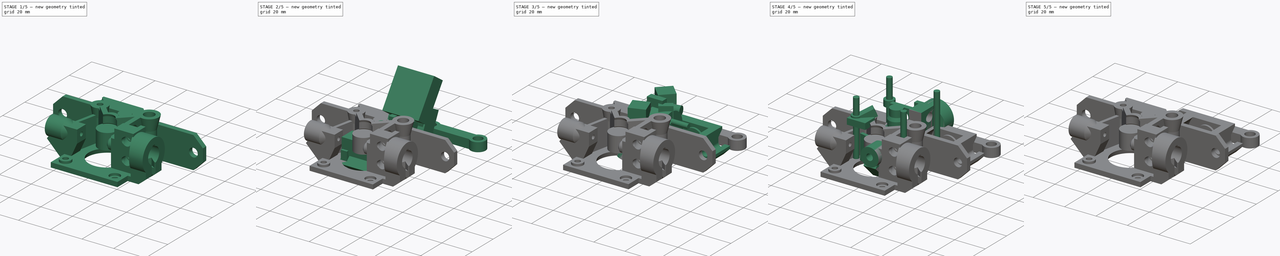
[diagram: build sequence overview — one tinted view per stage of 5, left to right]
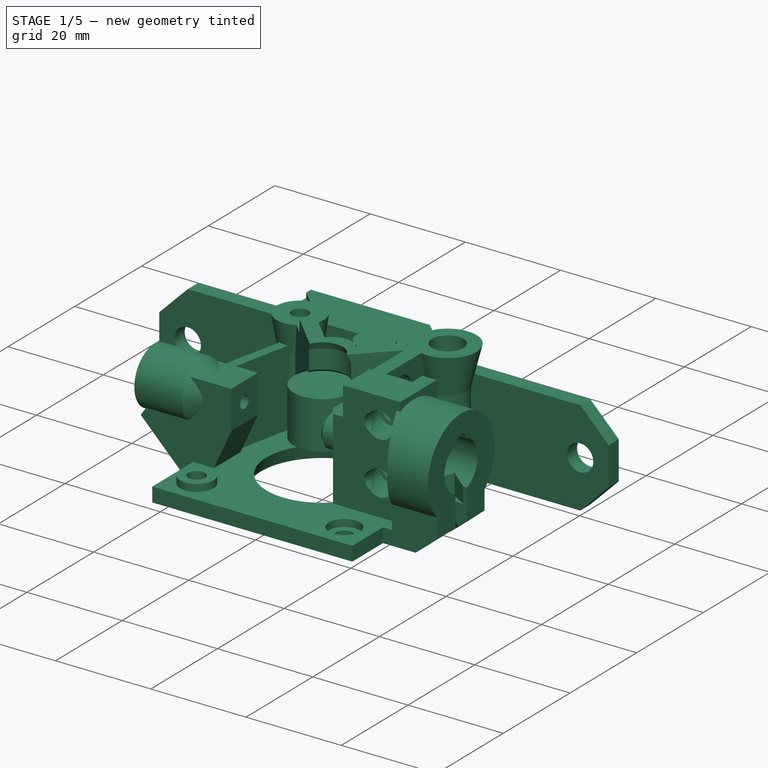
[diagram: stage 1 of 5 — iso view after this stage's code; geometry added in this stage tinted green]
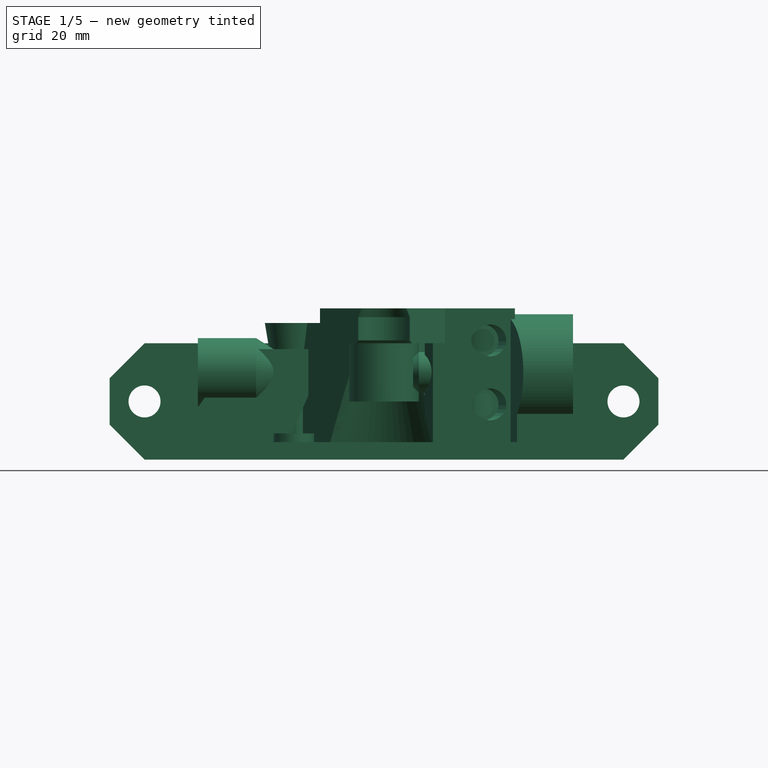
[diagram: stage 1 of 5 — front view after this stage's code; geometry added in this stage tinted green]
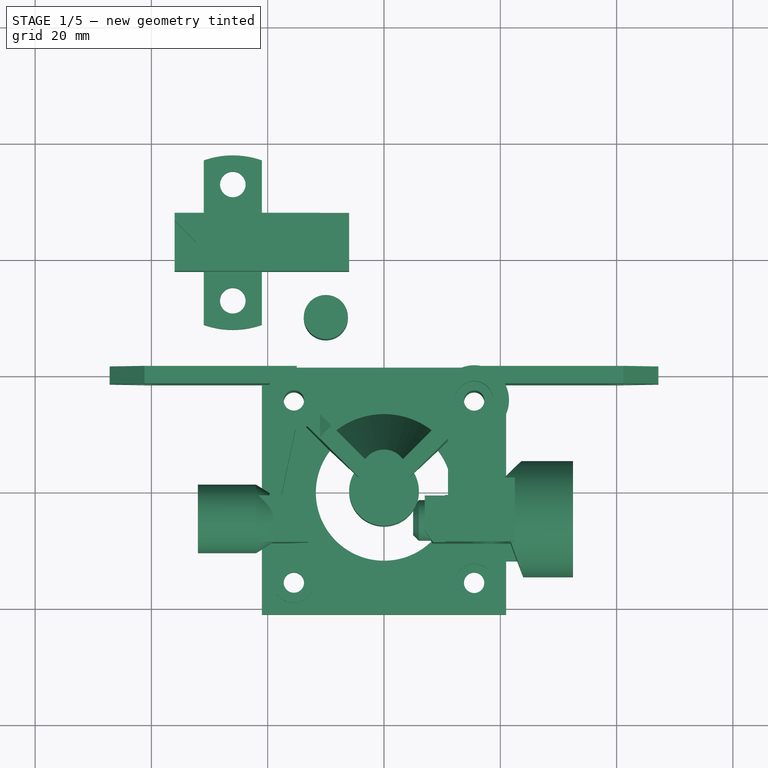
[diagram: stage 1 of 5 — top view after this stage's code; geometry added in this stage tinted green]
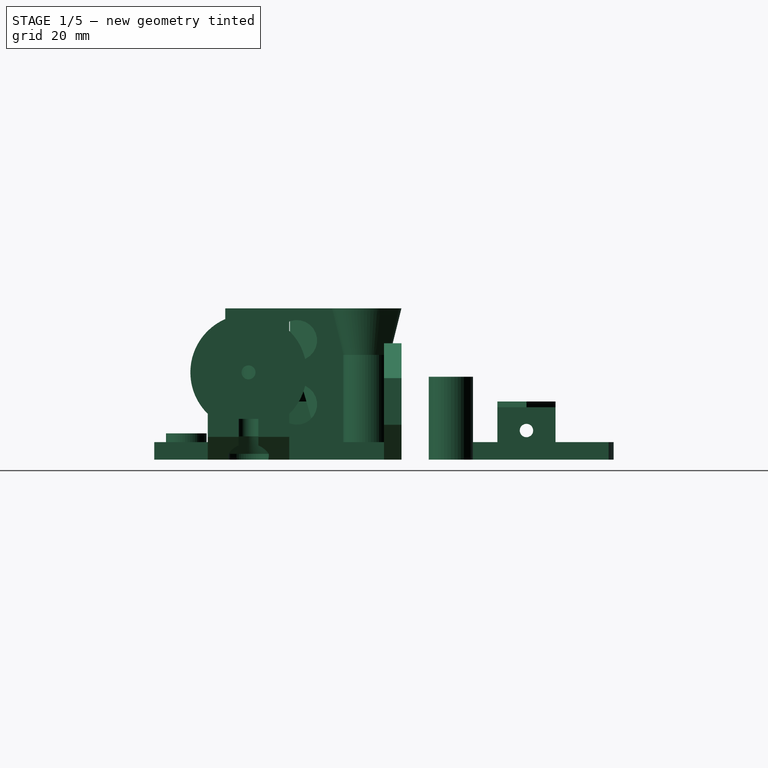
[diagram: stage 1 of 5 — right view after this stage's code; geometry added in this stage tinted green]
FCSTD DOCUMENT  (FreeCAD 0.14R2935 (Git))
Label: airstripper
License: CC-BY 3.0
LicenseURL: http://creativecommons.org/licenses/by/3.0/
objects: Part::Box×48, Part::Prism×48, Part::Cut×17, Part::MultiFuse×17, Part::Cone×12, Part::Cylinder×8, Part::Fuse×7, Part::Feature×4, Sketcher::SketchObject×3, PartDesign::Pocket×2, PartDesign::Chamfer×2, PartDesign::Pad×1
note: 172 computed .brp shape members not serialized (recipe doc carries the construction recipe); baked Part::Feature solids carry a one-line shape summary decoded from their .brp

FEATURE [Part::Prism] prism040
  Circumradius = 3.8
  Height = 14.25
  Placement = pos=(-10,10,0) rot=(0,0,1;0rad)
  Polygon = 40
FEATURE [Part::Box] cube042
  Height = 10
  Length = 30
  Placement = pos=(0,10,0) rot=(0,0,1;0rad)
  Width = 10
FEATURE [Part::Box] cube043
  Height = 3
  Length = 10
  Placement = pos=(5,0,0) rot=(0,0,1;0rad)
  Width = 30
FEATURE [Part::Prism] prism041
  Circumradius = 20
  Height = 5
  Placement = pos=(10,15,-1) rot=(0,0,1;0rad)
  Polygon = 100
FEATURE [Part::Prism] prism042
  Circumradius = 15
  Height = 5
  Placement = pos=(10,15,-1) rot=(0,0,1;0rad)
  Polygon = 100
FEATURE [Part::Cut] difference012
  Base = -> prism041
  Tool = -> prism042
FEATURE [Part::Cut] difference013
  Base = -> cube043
  Tool = -> difference012
FEATURE [Part::Fuse] union017
  Base = -> cube042
  Tool = -> difference013
FEATURE [Part::Prism] prism043
  Circumradius = 1.15
  Height = 32
  Placement = pos=(-1,15,5) rot=(0,1,0;1.5708rad)
  Polygon = 60
FEATURE [Part::Prism] prism044
  Circumradius = 2.14
  Height = 11
  Placement = pos=(-0.95,15,5) rot=(0,1,0;1.5708rad)
  Polygon = 60
FEATURE [Part::Prism] prism045
  Circumradius = 2.11
  Height = 11
  Placement = pos=(20,15,5) rot=(0,1,0;1.5708rad)
  Polygon = 60
FEATURE [Part::Cone] cylinder016
  Angle = 360
  Height = 5
  Placement = pos=(10,15,5) rot=(0,1,0;1.5708rad)
  Radius1 = 2.2
  Radius2 = 1.3
FEATURE [Part::Prism] prism046
  Circumradius = 2.2
  Height = 5
  Placement = pos=(10,25,-1) rot=(0,0,1;0rad)
  Polygon = 60
FEATURE [Part::Prism] prism047
  Circumradius = 2.2
  Height = 5
  Placement = pos=(10,5,-1) rot=(0,0,1;0rad)
  Polygon = 60
FEATURE [Part::Box] cube044
  Height = 5
  Length = 15
  Placement = pos=(-7,4.4,9) rot=(0,0,1;0.785398rad)
  Width = 15
FEATURE [Part::Box] cube045
  Height = 7
  Length = 25
  Placement = pos=(10,4.4,9) rot=(0,0,1;0rad)
  Width = 25
FEATURE [Part::Box] cube046
  Height = 5
  Length = 15
  Placement = pos=(19.4,4.4,9) rot=(0,0,1;0.785398rad)
  Width = 15
FEATURE [Part::Box] cube047
  Height = 7
  Length = 25
  Placement = pos=(0,4.4,9) rot=(0,0,1;0rad)
  Width = 25
FEATURE [Part::Fuse] union018
  Base = -> cube046
  Tool = -> cube047
FEATURE [Part::Cut] difference014
  Base = -> cube045
  Tool = -> union018
FEATURE [Part::MultiFuse] union019
  Shapes = -> [prism043,prism044,prism045,cylinder016,prism046,prism047,cube044,difference014]
FEATURE [Part::Cut] difference015
  Base = -> union017
  Placement = pos=(-36,8,0) rot=(0,0,1;0rad)
  Tool = -> union019
FEATURE [Part::Feature] Group001001  label="Group003"
  Placement = pos=(0,-20,0) rot=(0,0,-1;1.5708rad)
  shape: bbox 74 x 42.5 x 26 mm, 1647 faces (baked)
FEATURE [Part::Feature] Group001001001  label="Group004"
  shape: bbox 74 x 42.5 x 26 mm, 1647 faces (baked)
FEATURE [Sketcher::SketchObject] Sketch
  ExternalGeometry = -> [Group001001001]
  Placement = pos=(25.5,0,0) rot=(0.57735,0.57735,0.57735;2.0944rad)
  Support = -> Group001001001 [Face1198]
  sketch-geometry (2):
    g0: Circle [constr] CenterX=-24.8 CenterY=15 CenterZ=0 NormalX=0 NormalY=0 NormalZ=1 Radius=1.15
    g1: Circle CenterX=-24.8 CenterY=15 CenterZ=0 NormalX=0 NormalY=0 NormalZ=1 Radius=2.2
  constraints (5):
    c: PointOnObject(g-5,g0)
    c: PointOnObject(g-3,g0)
    c: PointOnObject(g-4,g0)
    c: Coincident(g1,g0)
    c: Radius(g1) = 2.2
FEATURE [PartDesign::Pocket] Pocket  label="Boquilla-teflon"
  Length = 5
  Sketch = -> Sketch
  Type = 0
FEATURE [Part::Feature] Pad  label="NEMA018"
  Placement = pos=(-21,-41,0) rot=(-1,0,0;1.5708rad)
  shape: bbox 42.3 x 42.3 x 65 mm, 22 faces (baked)
FEATURE [Part::Cylinder] Cylinder
  Angle = 360
  Height = 5
  Placement = pos=(5,-25,15) rot=(0,1,0;1.5708rad)
  Radius = 3.5
FEATURE [Part::Cylinder] Cylinder001
  Angle = 360
  Height = 10
  Placement = pos=(0,-20,10) rot=(0,0,1;0rad)
  Radius = 6
FEATURE [Part::MultiFuse] Fusion
  Shapes = -> [Pocket,Cylinder]
FEATURE [Part::Cylinder] Cylinder002
  Angle = 360
  Height = 137
  Placement = pos=(-56,-24.8,15) rot=(0,1,0;1.5708rad)
  Radius = 1.2
FEATURE [Part::Cut] Cut
  Base = -> Fusion
  Tool = -> Cylinder002
FEATURE [PartDesign::Chamfer] Chamfer
  Base = -> Cut [Edge1801,Edge3028]
  Size = 1
FEATURE [Sketcher::SketchObject] Sketch001
  ExternalGeometry = -> [Chamfer]
  Placement = pos=(0,1.5,0) rot=(0,0.707107,0.707107;3.14159rad)
  Support = -> Chamfer [Face658]
  sketch-geometry (14):
    g0: LineSegment StartX=-32.0503 StartY=20 StartZ=0 EndX=-47.1837 EndY=20 EndZ=0
    g1: LineSegment StartX=-47.1837 StartY=20 StartZ=0 EndX=-47.1837 EndY=0 EndZ=0
    g2: LineSegment StartX=-47.1837 StartY=0 StartZ=0 EndX=-32.0503 EndY=0 EndZ=0
    g3: LineSegment StartX=-32.0503 StartY=0 StartZ=0 EndX=-37 EndY=4.94975 EndZ=0
    g4: LineSegment StartX=-37 StartY=4.94975 StartZ=0 EndX=-37 EndY=15.0503 EndZ=0
    g5: LineSegment StartX=-37 StartY=15.0503 StartZ=0 EndX=-32.0503 EndY=20 EndZ=0
    g6: LineSegment StartX=32.0503 StartY=20 StartZ=0 EndX=47.1837 EndY=20 EndZ=0
    g7: LineSegment StartX=47.1837 StartY=20 StartZ=0 EndX=47.1837 EndY=0 EndZ=0
    g8: LineSegment StartX=47.1837 StartY=0 StartZ=0 EndX=32.0503 EndY=0 EndZ=0
    g9: LineSegment StartX=32.0503 StartY=0 StartZ=0 EndX=37 EndY=4.94975 EndZ=0
    g10: LineSegment StartX=37 StartY=4.94975 StartZ=0 EndX=37 EndY=15.0503 EndZ=0
    g11: LineSegment StartX=37 StartY=15.0503 StartZ=0 EndX=32.0503 EndY=20 EndZ=0
    g12: Circle CenterX=-30.5 CenterY=10 CenterZ=0 NormalX=0 NormalY=0 NormalZ=1 Radius=3.5
    g13: Circle CenterX=30.5 CenterY=10 CenterZ=0 NormalX=0 NormalY=0 NormalZ=1 Radius=3.5
  constraints (34):
    c: Coincident(g-3,g0)
    c: Horizontal(g0)
    c: Coincident(g0,g1)
    c: Vertical(g1)
    c: Coincident(g1,g2)
    c: Coincident(g2,g-5)
    c: Horizontal(g2)
    c: Coincident(g2,g3)
    c: Coincident(g3,g-5)
    c: Coincident(g3,g4)
    c: Coincident(g4,g-4)
    c: Coincident(g4,g5)
    c: Coincident(g5,g0)
    c: Coincident(g-6,g6)
    c: Horizontal(g6)
    c: Coincident(g6,g7)
    c: Vertical(g7)
    c: Coincident(g7,g8)
    c: Coincident(g8,g-8)
    c: Horizontal(g8)
    c: Coincident(g8,g9)
    c: Coincident(g9,g-8)
    c: Coincident(g9,g10)
    c: Coincident(g10,g-7)
    c: Coincident(g10,g11)
    c: Coincident(g11,g6)
    c: PointOnObject(g-13,g12)
    c: PointOnObject(g-12,g12)
    c: PointOnObject(g-14,g12)
    c: PointOnObject(g-10,g13)
    c: PointOnObject(g-9,g13)
    c: PointOnObject(g-11,g13)
    c: Equal(g6,g0)
    c: Distance(g0) = 15.1334
FEATURE [PartDesign::Pad] Pad001
  Length = 3
  Length2 = 100
  Reversed = true
  Sketch = -> Sketch001
  Type = 0
FEATURE [PartDesign::Chamfer] Chamfer001
  Base = -> Pad001 [Edge3522,Edge3524,Edge2,Edge1]
  Size = 6
FEATURE [Sketcher::SketchObject] Sketch002
  ExternalGeometry = -> [Chamfer001]
  Placement = pos=(0,1.5,0) rot=(0,0.707107,0.707107;3.14159rad)
  Support = -> Chamfer001 [Face2]
  sketch-geometry (5):
    g0: LineSegment [constr] StartX=-41.1837 StartY=20 StartZ=0 EndX=-41.1837 EndY=0 EndZ=0
    g1: LineSegment [constr] StartX=41.1837 StartY=20 StartZ=0 EndX=41.1837 EndY=0 EndZ=0
    g2: Circle CenterX=-41.1837 CenterY=10 CenterZ=0 NormalX=0 NormalY=0 NormalZ=1 Radius=2.75
    g3: Circle CenterX=41.1837 CenterY=10 CenterZ=0 NormalX=0 NormalY=0 NormalZ=1 Radius=2.75
    g4: LineSegment [constr] StartX=-41.1837 StartY=10 StartZ=0 EndX=41.1837 EndY=10 EndZ=0
  constraints (13):
    c: Coincident(g0,g-4)
    c: PointOnObject(g0,g-3)
    c: Vertical(g0)
    c: Coincident(g1,g-5)
    c: Coincident(g1,g-6)
    c: PointOnObject(g2,g0)
    c: PointOnObject(g3,g1)
    c: Coincident(g4,g2)
    c: Horizontal(g4)
    c: Coincident(g3,g4)
    c: Equal(g3,g2)
    c: Distance(g3,g1) = 10
    c: Radius(g3) = 2.75
FEATURE [PartDesign::Pocket] Pocket001
  Length = 5
  Sketch = -> Sketch002
  Type = 0
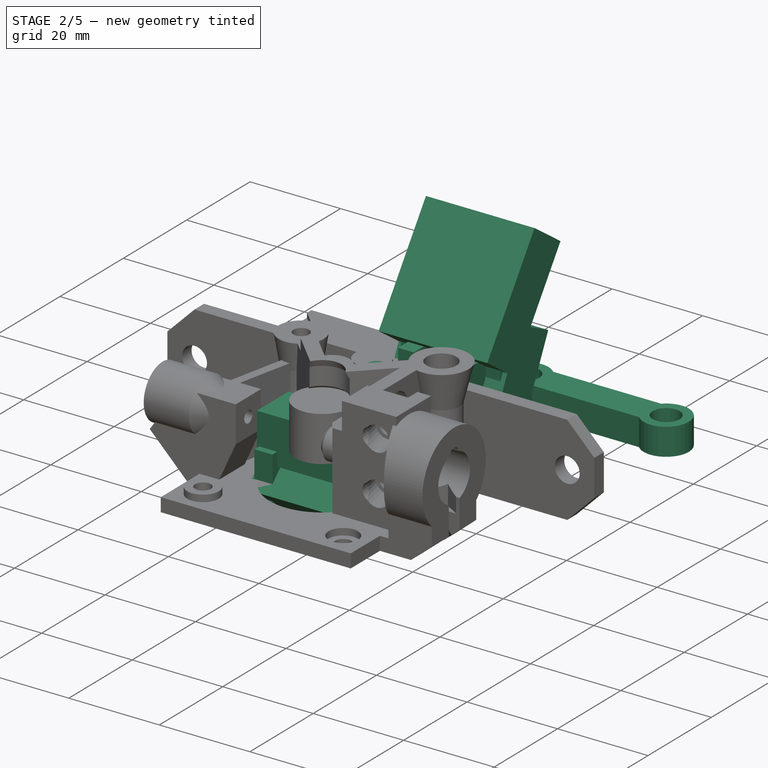
[diagram: stage 2 of 5 — iso view after this stage's code; geometry added in this stage tinted green]
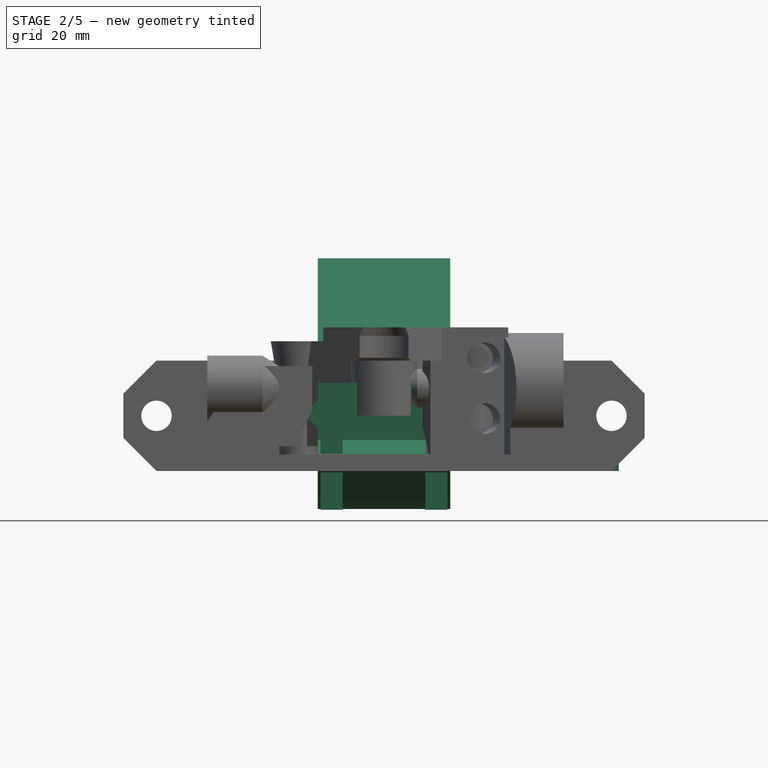
[diagram: stage 2 of 5 — front view after this stage's code; geometry added in this stage tinted green]
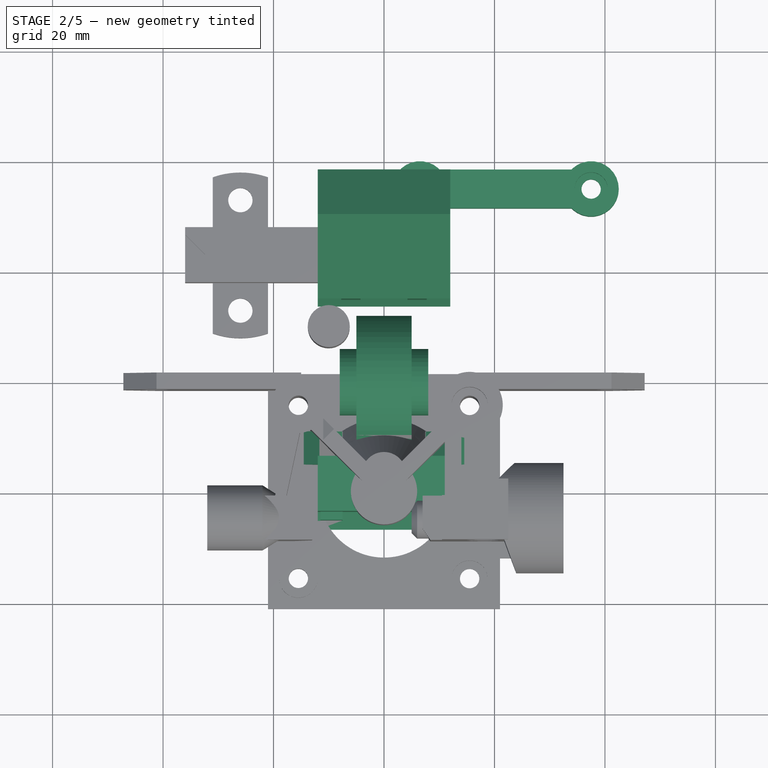
[diagram: stage 2 of 5 — top view after this stage's code; geometry added in this stage tinted green]
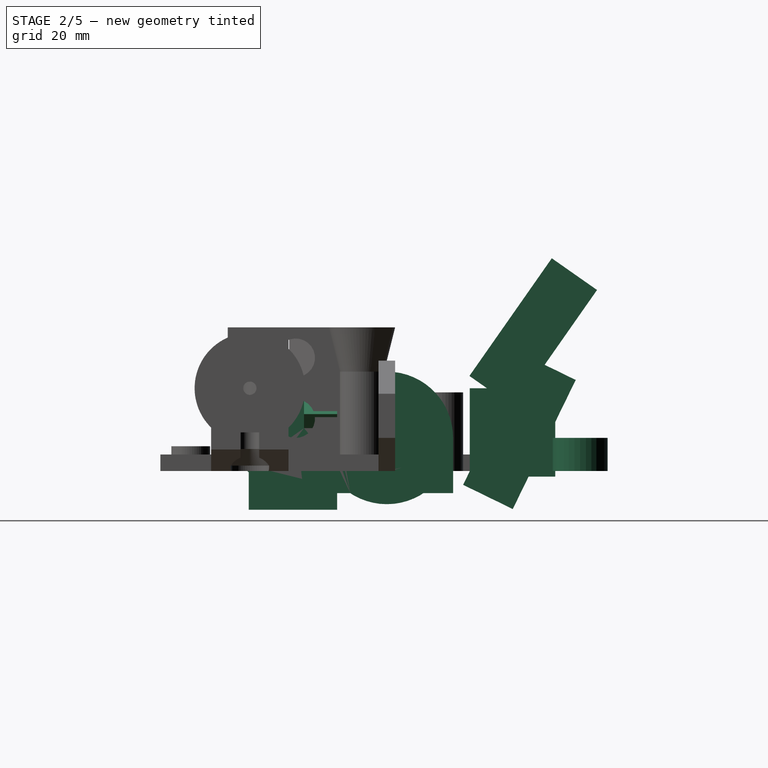
[diagram: stage 2 of 5 — right view after this stage's code; geometry added in this stage tinted green]
FEATURE [Part::Box] cube025
  Height = 10
  Length = 10
  Placement = pos=(-5,-12,-4) rot=(0,0,1;0rad)
  Width = 24
FEATURE [Part::Prism] prism029
  Circumradius = 12
  Height = 10
  Placement = pos=(-5,0,6) rot=(0,1,0;1.5708rad)
  Polygon = 60
FEATURE [Part::Fuse] union012
  Base = -> cube025
  Tool = -> prism029
FEATURE [Part::Prism] prism030
  Circumradius = 6
  Height = 16
  Placement = pos=(-8,0,6) rot=(0,1,0;1.5708rad)
  Polygon = 40
FEATURE [Part::Box] cube026
  Height = 6
  Length = 16
  Placement = pos=(-8,-6,0) rot=(0,0,1;0rad)
  Width = 12
FEATURE [Part::Prism] prism031
  Circumradius = 4.25
  Height = 15.5
  Placement = pos=(-7.75,0,6) rot=(0,1,0;1.5708rad)
  Polygon = 40
FEATURE [Part::Box] cube027
  Height = 8
  Length = 14.2
  Placement = pos=(-7.1,-4.25,-2) rot=(0,0,1;0rad)
  Width = 8.5
FEATURE [Part::Box] cube028
  Height = 8
  Length = 6
  Placement = pos=(-8.68716,-4.25,-2.73271) rot=(0,1,0;0.349066rad)
  Width = 8.5
FEATURE [Part::Box] cube029
  Height = 8
  Length = 6
  Placement = pos=(3.049,-4.25,-4.78483) rot=(0,-1,0;0.349066rad)
  Width = 8.5
FEATURE [Part::Prism] prism032
  Circumradius = 12
  Height = 7.4
  Placement = pos=(-3.7,0,6) rot=(0,1,0;1.5708rad)
  Polygon = 60
FEATURE [Part::Prism] prism033
  Circumradius = 2
  Height = 24
  Placement = pos=(-12,-15.5,6) rot=(0,1,0;1.5708rad)
  Polygon = 25
FEATURE [Part::Box] cube030
  Height = 10
  Length = 24
  Placement = pos=(-12,-23.5,6) rot=(0,0,1;0rad)
  Width = 10
FEATURE [Part::Box] cube031
  Height = 16
  Length = 4
  Placement = pos=(7.5,-25,-7) rot=(0,0,1;0rad)
  Width = 16
FEATURE [Part::Box] cube032
  Height = 16
  Length = 4
  Placement = pos=(-11.5,-25,-7) rot=(0,0,1;0rad)
  Width = 16
FEATURE [Part::Box] cube033
  Height = 10
  Length = 24
  Placement = pos=(-12,-19.5858,-5.65686) rot=(1,0,0;0.785398rad)
  Width = 6
FEATURE [Part::Box] cube034
  Height = 6
  Length = 4
  Placement = pos=(-11.7071,-15,13.1355) rot=(0,1,0;2.35619rad)
  Width = 6
FEATURE [Part::Box] cube035
  Height = 6
  Length = 4
  Placement = pos=(7.46447,-15,8.89289) rot=(0,1,0;0.785398rad)
  Width = 6
FEATURE [Part::Box] cube036
  Height = 16
  Length = 3.5
  Placement = pos=(4.25,15,-1) rot=(0,0,1;0rad)
  Width = 10
FEATURE [Part::Box] cube037
  Height = 16
  Length = 3.5
  Placement = pos=(-7.75,15,-1) rot=(0,0,1;0rad)
  Width = 10
FEATURE [Part::Box] cube038
  Height = 26
  Length = 24
  Placement = pos=(-12,34.1928,16.4925) rot=(1,0,0;2.68781rad)
  Width = 10
FEATURE [Part::Box] cube039
  Height = 26
  Length = 24
  Placement = pos=(-12,38.0522,32.7811) rot=(1,0,0;2.53073rad)
  Width = 10
FEATURE [Part::Box] cube040
  Height = 16
  Length = 22
  Placement = pos=(-11,20.5,-1) rot=(0,0,1;0rad)
  Width = 10
FEATURE [Part::MultiFuse] union014
  Shapes = -> [prism031,cube027,cube028,cube029,prism032,prism033,cube030,cube031,cube032,cube033,cube034,cube035,cube036,cube037,cube038,cube039,cube040]
FEATURE [Part::Prism] prism034
  Circumradius = 5
  Height = 6
  Placement = pos=(-15.5,0,0) rot=(0,0,1;0rad)
  Polygon = 30
FEATURE [Part::Prism] prism035
  Circumradius = 5
  Height = 6
  Placement = pos=(15.5,0,0) rot=(0,0,1;0rad)
  Polygon = 30
FEATURE [Part::Box] cube041
  Height = 6
  Length = 31
  Placement = pos=(-15.5,-3.5,0) rot=(0,0,1;0rad)
  Width = 7
FEATURE [Part::MultiFuse] union015
  Shapes = -> [prism034,prism035,cube041]
FEATURE [Part::Prism] prism036
  Circumradius = 1.75
  Height = 5
  Placement = pos=(-15.5,0,-1) rot=(0,0,1;0rad)
  Polygon = 30
FEATURE [Part::Prism] prism037
  Circumradius = 1.75
  Height = 5
  Placement = pos=(15.5,0,-1) rot=(0,0,1;0rad)
  Polygon = 30
FEATURE [Part::Prism] prism038
  Circumradius = 3
  Height = 5
  Placement = pos=(-15.5,0,3) rot=(0,0,1;0rad)
  Polygon = 30
FEATURE [Part::Prism] prism039
  Circumradius = 3
  Height = 5
  Placement = pos=(15.5,0,3) rot=(0,0,1;0rad)
  Polygon = 30
FEATURE [Part::MultiFuse] union016
  Shapes = -> [prism036,prism037,prism038,prism039]
FEATURE [Part::Cut] difference011
  Base = -> union015
  Placement = pos=(22,35,0) rot=(0,0,1;0rad)
  Tool = -> union016
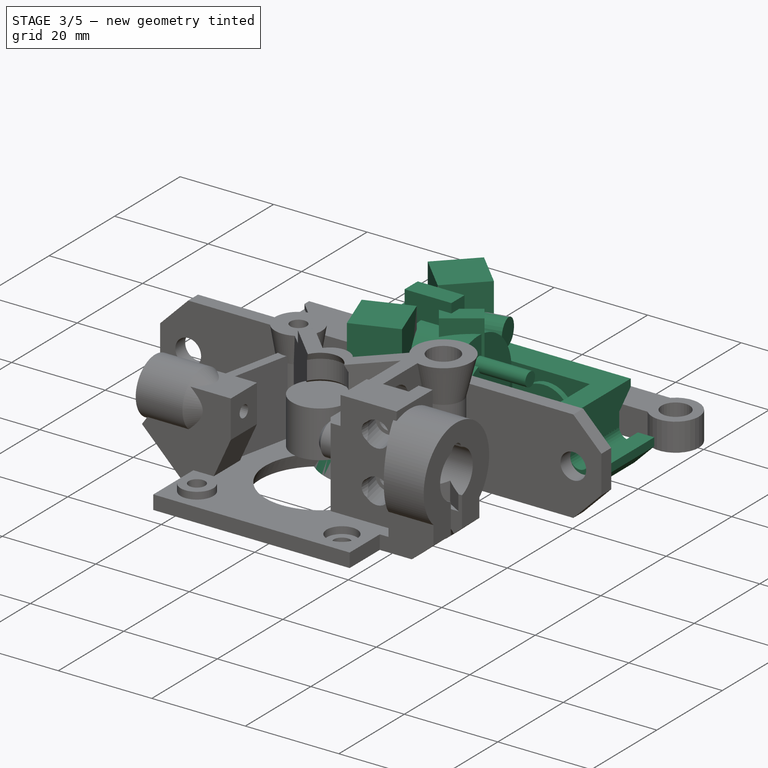
[diagram: stage 3 of 5 — iso view after this stage's code; geometry added in this stage tinted green]
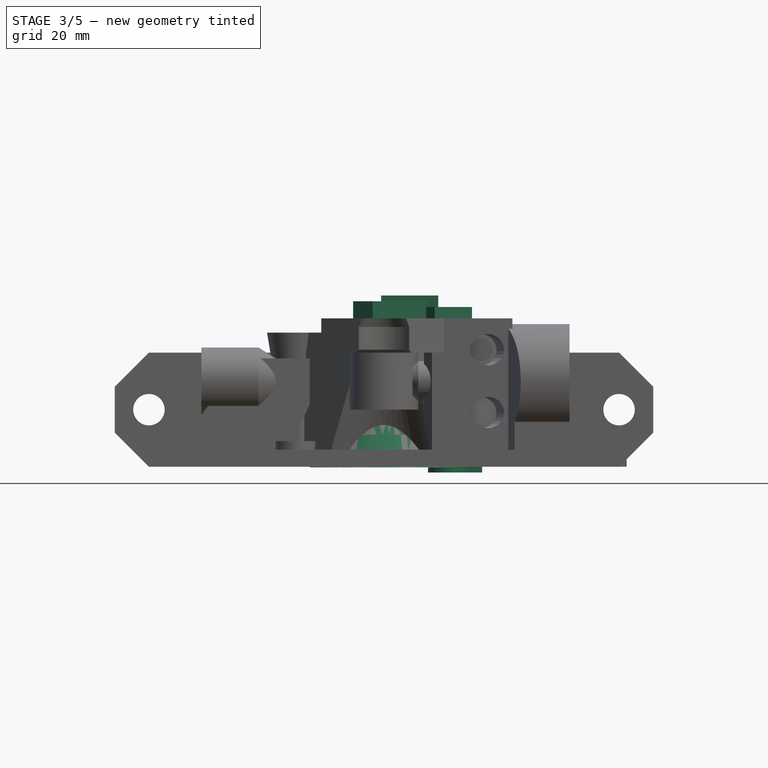
[diagram: stage 3 of 5 — front view after this stage's code; geometry added in this stage tinted green]
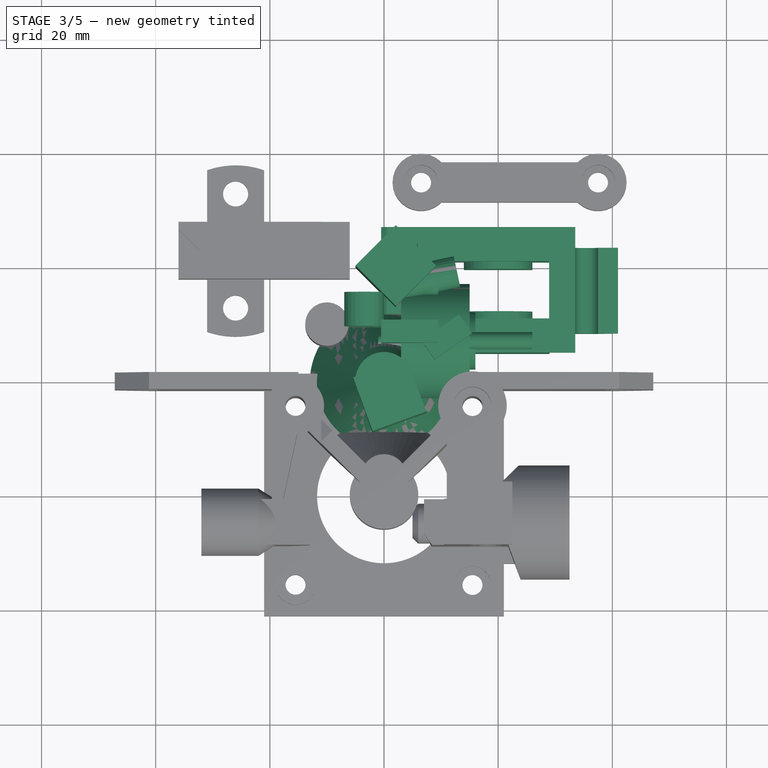
[diagram: stage 3 of 5 — top view after this stage's code; geometry added in this stage tinted green]
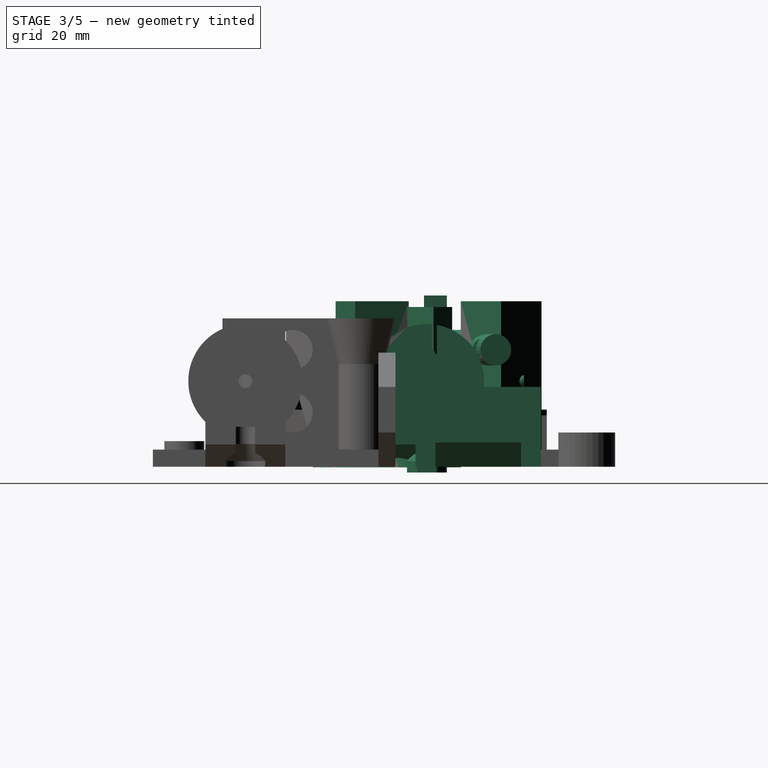
[diagram: stage 3 of 5 — right view after this stage's code; geometry added in this stage tinted green]
FEATURE [Part::Prism] prism015
  Circumradius = 10
  Height = 12
  Placement = pos=(3,7,15) rot=(0,1,0;1.5708rad)
  Polygon = 100
FEATURE [Part::Prism] prism016
  Circumradius = 1.5
  Height = 18
  Placement = pos=(8,7,19.5) rot=(0,1,0;1.5708rad)
  Polygon = 50
FEATURE [Part::Box] cube017
  Height = 26
  Length = 10
  Placement = pos=(-5,20,3) rot=(0,0,-1;0.785398rad)
  Width = 10
FEATURE [Part::Fuse] union007
  Base = -> prism016
  Tool = -> cube017
FEATURE [Part::Box] cube018
  Height = 15
  Length = 12
  Placement = pos=(3,0,0) rot=(0,0,1;0rad)
  Width = 14
FEATURE [Part::Box] cube019
  Height = 26
  Length = 10
  Placement = pos=(2,-1,-7) rot=(0,1,0;0.872664rad)
  Width = 16
FEATURE [Part::Cut] difference006
  Base = -> cube018
  Tool = -> cube019
FEATURE [Part::Prism] prism017
  Circumradius = 5
  Height = 8
  Placement = pos=(8,7,15) rot=(0,1,0;1.5708rad)
  Polygon = 100
FEATURE [Part::Prism] prism018
  Circumradius = 1.15
  Height = 19
  Placement = pos=(-1,7,15) rot=(0,1,0;1.5708rad)
  Polygon = 30
FEATURE [Part::Prism] prism019
  Circumradius = 1.75
  Height = 15
  Placement = pos=(11.2,7,-1) rot=(0,0,1;0rad)
  Polygon = 50
FEATURE [Part::Prism] prism020
  Circumradius = 3.5
  Height = 5
  Placement = pos=(11.2,7,7) rot=(0,0,1;0.523599rad)
  Polygon = 6
FEATURE [Part::Box] cube020
  Height = 15
  Length = 6
  Placement = pos=(11.2,5.3,-1) rot=(0,0,1;0rad)
  Width = 3.4
FEATURE [Part::Prism] prism021
  Circumradius = 3.5
  Height = 2
  Placement = pos=(11.2,7,-1) rot=(0,0,1;0rad)
  Polygon = 50
FEATURE [Part::Cone] cylinder013
  Angle = 360
  Height = 3
  Placement = pos=(11.2,7,0.99) rot=(0,0,1;0rad)
  Radius1 = 3.5
  Radius2 = 1.75
FEATURE [Part::Box] cube021
  Height = 26
  Length = 10
  Placement = pos=(-2,-9,3) rot=(0,0,1;0.349066rad)
  Width = 10
FEATURE [Part::MultiFuse] union009
  Shapes = -> [prism017,prism018,prism019,prism020,cube020,prism021,cylinder013,cube021]
FEATURE [Part::Prism] prism022
  Circumradius = 1.15
  Height = 20
  Placement = pos=(4.8,24,15) rot=(1,0,0;1.5708rad)
  Polygon = 25
FEATURE [Part::Cone] cylinder014
  Angle = 360
  Height = 10
  Placement = pos=(5.3,16,15) rot=(0.998099,0.043578,0.043578;1.5727rad)
  Radius1 = 0.4
  Radius2 = 3
FEATURE [Part::Cone] cylinder015
  Angle = 360
  Height = 20
  Placement = pos=(0,0,-0.1) rot=(0,0,1;0rad)
  Radius1 = 13
  Radius2 = 5
FEATURE [Part::Prism] prism023
  Circumradius = 2.75
  Height = 10
  Placement = pos=(3,17,20.5) rot=(-0.103962,0.989133,0.103962;1.58172rad)
  Polygon = 25
FEATURE [Part::Prism] prism024
  Circumradius = 2.75
  Height = 10
  Placement = pos=(3,17,9.5) rot=(-0.103962,0.989133,0.103962;1.58172rad)
  Polygon = 25
FEATURE [Part::Prism] prism025
  Circumradius = 2
  Height = 10
  Placement = pos=(-0.5,17,20.5) rot=(0,1,0;1.5708rad)
  Polygon = 25
FEATURE [Part::Prism] prism026
  Circumradius = 2
  Height = 10
  Placement = pos=(-0.5,17,9.5) rot=(0,1,0;1.5708rad)
  Polygon = 25
FEATURE [Part::Prism] prism027
  Circumradius = 3.5
  Height = 6
  Placement = pos=(-3.5,15.5,9.5) rot=(1,0,0;1.5708rad)
  Polygon = 25
FEATURE [Part::Prism] prism028
  Circumradius = 3.5
  Height = 6
  Placement = pos=(-3.5,15.5,20.5) rot=(1,0,0;1.5708rad)
  Polygon = 25
FEATURE [Part::Box] cube022
  Height = 28
  Length = 8
  Placement = pos=(8.87054,3.56739,2.20534e-06) rot=(0,0,1;0.610865rad)
  Width = 4
FEATURE [Part::Box] cube023
  Height = 10
  Length = 10
  Placement = pos=(-0.5,6.5,20) rot=(0,0,1;0rad)
  Width = 4
FEATURE [Part::MultiFuse] union011
  Shapes = -> [prism022,cylinder014,cylinder015,prism023,prism024,prism025,prism026,prism027,prism028,cube022,cube023]
FEATURE [Part::Box] cube024
  Height = 14
  Length = 22
  Placement = pos=(-11,-21,0) rot=(0,0,1;0rad)
  Width = 42
FEATURE [Part::Cut] difference009
  Base = -> cube024
  Tool = -> union012
FEATURE [Part::MultiFuse] union013
  Shapes = -> [difference009,prism030,cube026]
FEATURE [Part::Cut] difference010
  Base = -> union013
  Placement = pos=(20,16,0) rot=(0,0,1;1.5708rad)
  Tool = -> union014
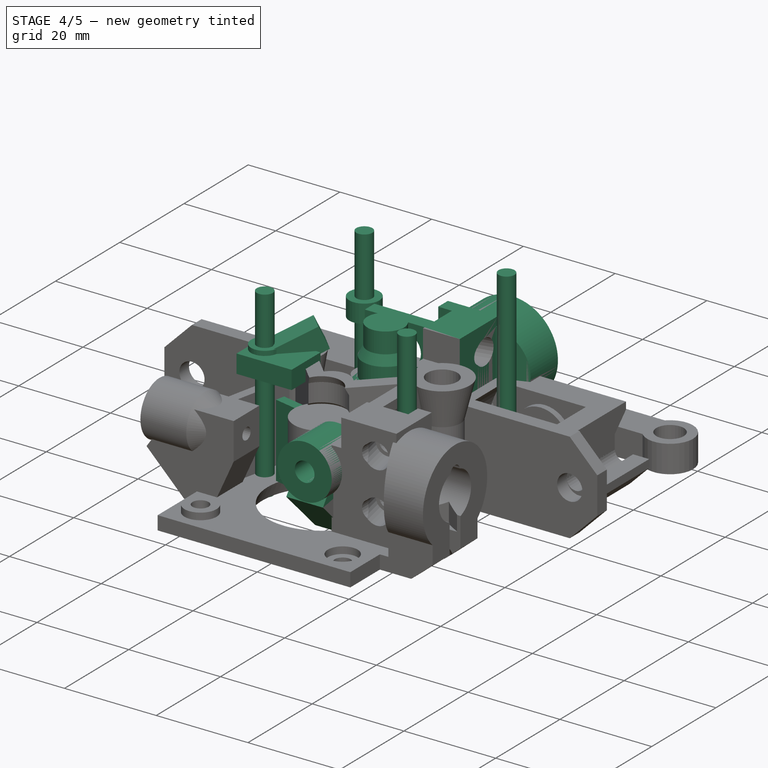
[diagram: stage 4 of 5 — iso view after this stage's code; geometry added in this stage tinted green]
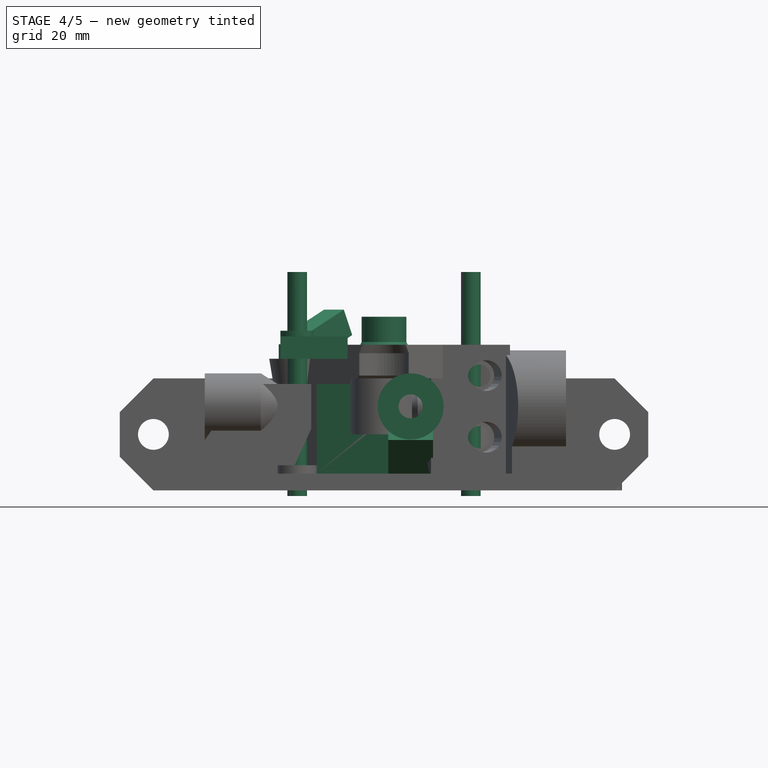
[diagram: stage 4 of 5 — front view after this stage's code; geometry added in this stage tinted green]
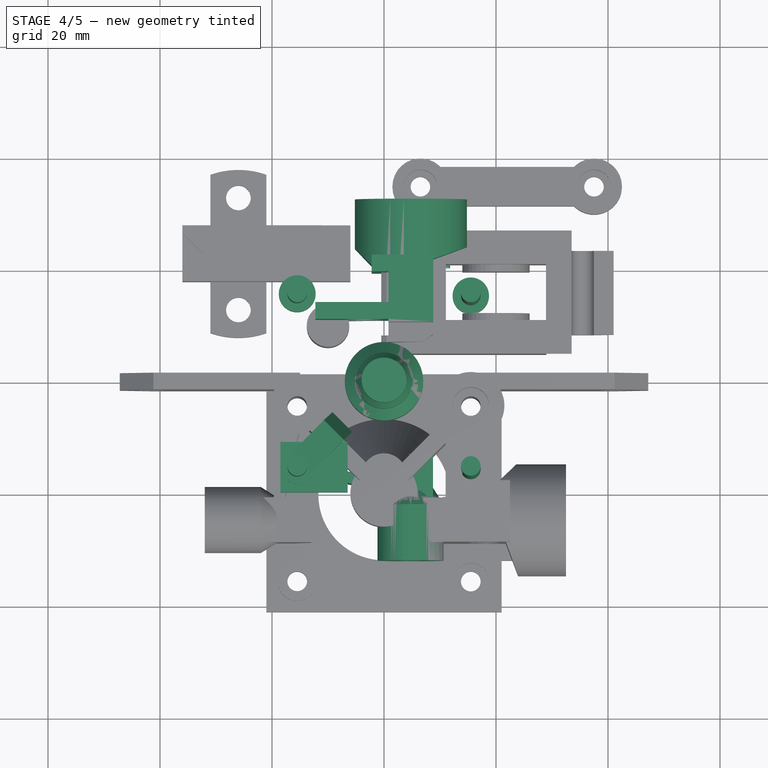
[diagram: stage 4 of 5 — top view after this stage's code; geometry added in this stage tinted green]
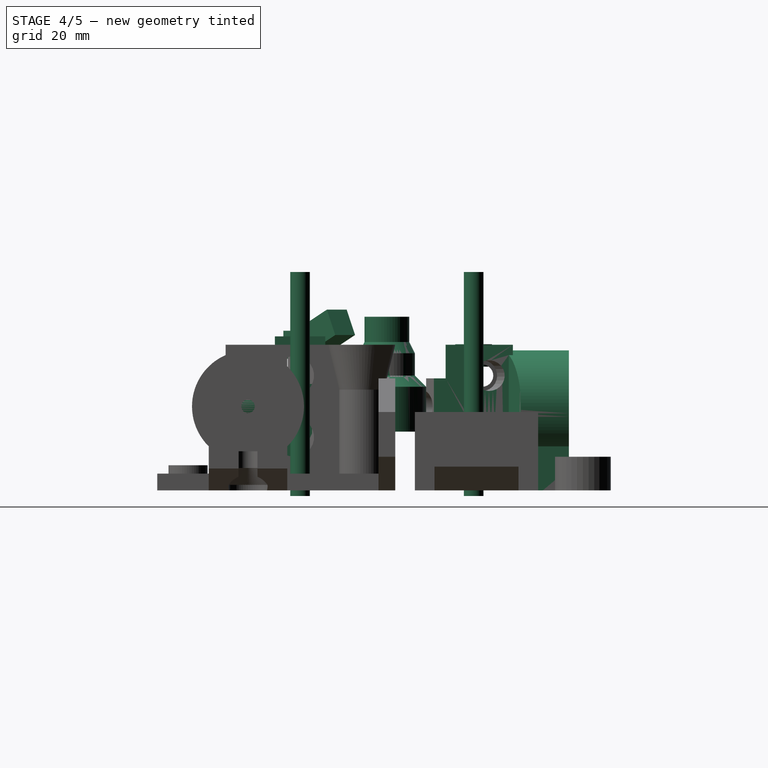
[diagram: stage 4 of 5 — right view after this stage's code; geometry added in this stage tinted green]
FEATURE [Part::Prism] prism007
  Circumradius = 5
  Height = 5
  Placement = pos=(0,0,19.5) rot=(0,0,1;0rad)
  Polygon = 50
FEATURE [Part::Prism] prism008
  Circumradius = 4
  Height = 8
  Placement = pos=(0,0,23) rot=(0,0,1;0rad)
  Polygon = 50
FEATURE [Part::Cone] cylinder004
  Angle = 360
  Height = 2
  Placement = pos=(0,0,24.5) rot=(0,0,1;0rad)
  Radius1 = 5
  Radius2 = 4
FEATURE [Part::Prism] prism009
  Circumradius = 7
  Height = 8
  Placement = pos=(0,0,10.5) rot=(0,0,1;0rad)
  Polygon = 100
FEATURE [Part::Cone] cylinder005
  Angle = 360
  Height = 3.5
  Placement = pos=(0,0,18.5) rot=(0,0,1;0rad)
  Radius1 = 7
  Radius2 = 3.5
FEATURE [Part::Prism] prism010
  Circumradius = 3
  Height = 5
  Placement = pos=(-15.5,-15.5,23.5) rot=(0,0,1;0rad)
  Polygon = 30
FEATURE [Part::Box] cube011
  Height = 4
  Length = 12
  Placement = pos=(-18.5,-20,23.5) rot=(0,0,1;0rad)
  Width = 9
FEATURE [Part::Box] cube012
  Height = 5
  Length = 5
  Placement = pos=(-15.625,-12.0894,23.5211) rot=(0.463118,-0.19183,-0.865288;0.892926rad)
  Width = 10
FEATURE [Part::Cylinder] cylinder006
  Angle = 360
  Height = 40
  Placement = pos=(-15.5,15.5,-1) rot=(0,0,1;1.5708rad)
  Radius = 1.75
FEATURE [Part::Cylinder] cylinder007
  Angle = 360
  Height = 40
  Placement = pos=(-15.5,-15.5,-1) rot=(0,0,1;3.14159rad)
  Radius = 1.75
FEATURE [Part::Cylinder] cylinder008
  Angle = 360
  Height = 40
  Placement = pos=(15.5,-15.5,-1) rot=(0,0,-1;1.5708rad)
  Radius = 1.75
FEATURE [Part::Cylinder] cylinder009
  Angle = 360
  Height = 40
  Placement = pos=(15.5,15.5,-1) rot=(0,0,1;0rad)
  Radius = 1.75
FEATURE [Part::MultiFuse] Group
  Shapes = -> [cylinder006,cylinder007,cylinder008,cylinder009]
FEATURE [Part::Prism] prism011
  Circumradius = 3.3
  Height = 4
  Placement = pos=(-15.5,15.5,22.1) rot=(0,0,1;0rad)
  Polygon = 30
FEATURE [Part::Cylinder] cylinder010
  Angle = 360
  Height = 4
  Placement = pos=(15.5,15.5,1.5) rot=(0,0,1;0rad)
  Radius = 3.25
FEATURE [Part::Feature] polyhedron
  shape: bbox 19 x 8 x 19 mm, 8 faces (baked)
FEATURE [Part::Prism] prism012
  Circumradius = 5.9
  Height = 10
  Placement = pos=(-2,4,12) rot=(0,-1,0;1.5708rad)
  Polygon = 100
FEATURE [Part::Cone] cylinder011
  Angle = 360
  Height = 3
  Placement = pos=(1,4,12) rot=(0,-1,0;1.5708rad)
  Radius1 = 4
  Radius2 = 5.9
FEATURE [Part::MultiFuse] union004
  Shapes = -> [polyhedron,prism012,cylinder011]
FEATURE [Part::Prism] prism013
  Circumradius = 1.3
  Height = 22
  Placement = pos=(8,4,12) rot=(0,-1,0;1.5708rad)
  Polygon = 25
FEATURE [Part::Prism] prism014
  Circumradius = 2.15
  Height = 12
  Placement = pos=(-2.9,4,12) rot=(0,-1,0;1.5708rad)
  Polygon = 60
FEATURE [Part::Cone] cylinder012
  Angle = 360
  Height = 3
  Placement = pos=(0,4,12) rot=(0,-1,0;1.5708rad)
  Radius1 = 1.3
  Radius2 = 2.15
FEATURE [Part::MultiFuse] union005
  Shapes = -> [prism013,prism014,cylinder012]
FEATURE [Part::Cut] difference004
  Base = -> union004
  Placement = pos=(8.75,-20,3) rot=(0,0,1;1.5708rad)
  Tool = -> union005
FEATURE [Part::Box] cube013
  Height = 16
  Length = 14
  Placement = pos=(-12,-17,3) rot=(0,0,-1;0.20944rad)
  Width = 2
FEATURE [Part::Fuse] union006
  Base = -> difference004
  Tool = -> cube013
FEATURE [Part::Box] cube014
  Height = 26
  Length = 8
  Placement = pos=(0.8,7,0) rot=(0,0,1;0rad)
  Width = 14
FEATURE [Part::Box] cube015
  Height = 26
  Length = 13.5
  Placement = pos=(-12.25,11,0) rot=(0,0,1;0rad)
  Width = 3
FEATURE [Part::Box] cube016
  Height = 26
  Length = 11
  Placement = pos=(-2.2,19.5,0) rot=(0,0,1;0rad)
  Width = 3
FEATURE [Part::Cut] difference005
  Base = -> prism015
  Tool = -> union007
FEATURE [Part::Fuse] union008
  Base = -> difference005
  Tool = -> difference006
FEATURE [Part::Cut] difference007
  Base = -> union008
  Placement = pos=(11.8,17.5,0) rot=(0,0,1;1.5708rad)
  Tool = -> union009
FEATURE [Part::MultiFuse] union010
  Shapes = -> [cube014,cube015,cube016,difference007]
FEATURE [Part::Cut] difference008
  Base = -> union010
  Tool = -> union011
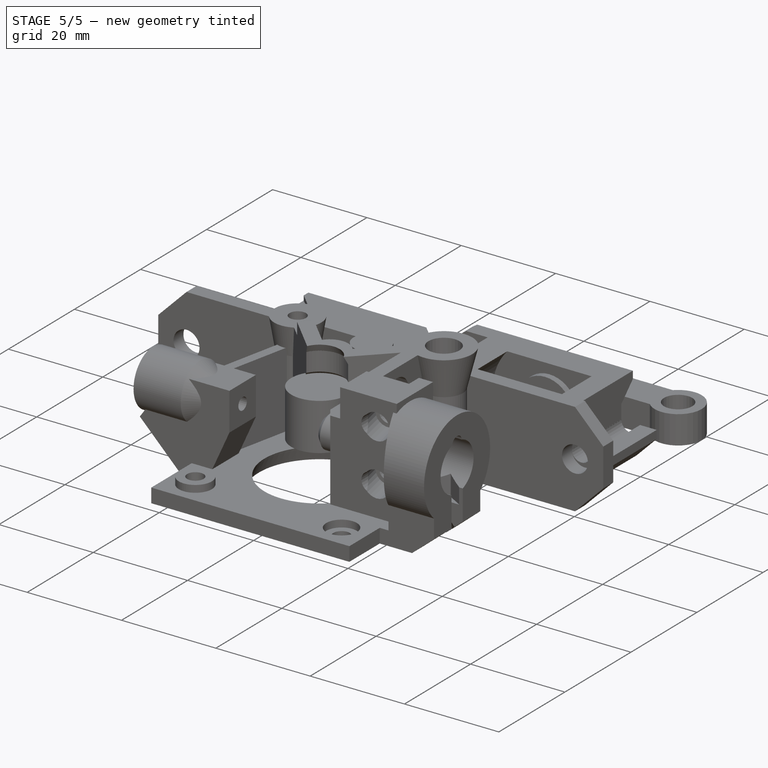
[diagram: stage 5 of 5 — iso view after this stage's code; geometry added in this stage tinted green]
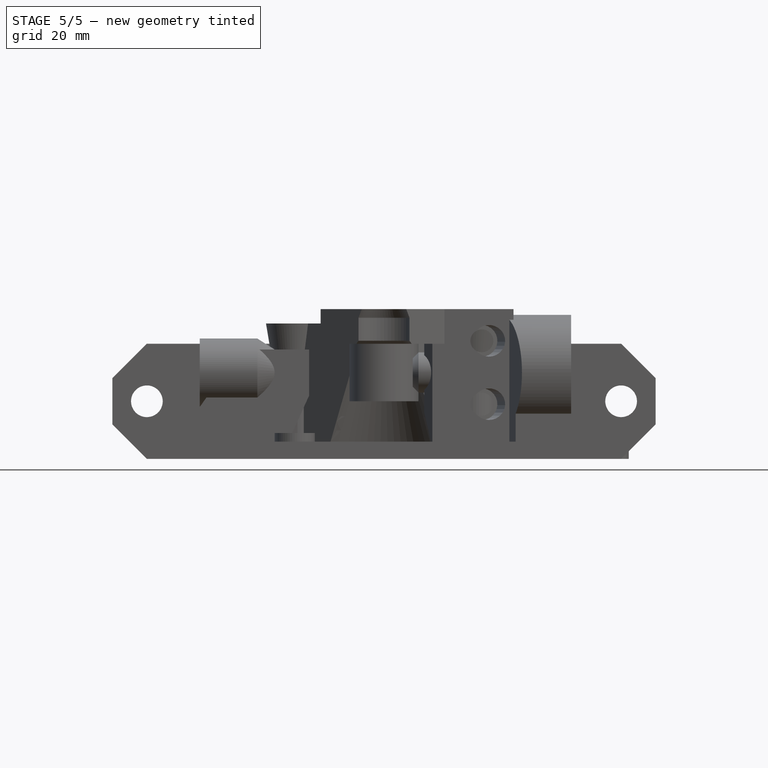
[diagram: stage 5 of 5 — front view after this stage's code; geometry added in this stage tinted green]
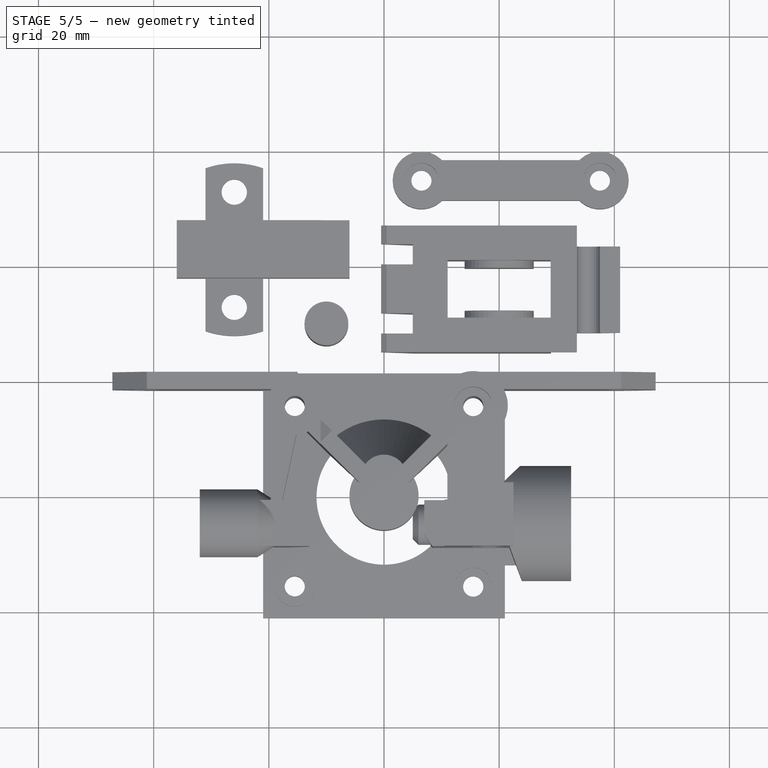
[diagram: stage 5 of 5 — top view after this stage's code; geometry added in this stage tinted green]
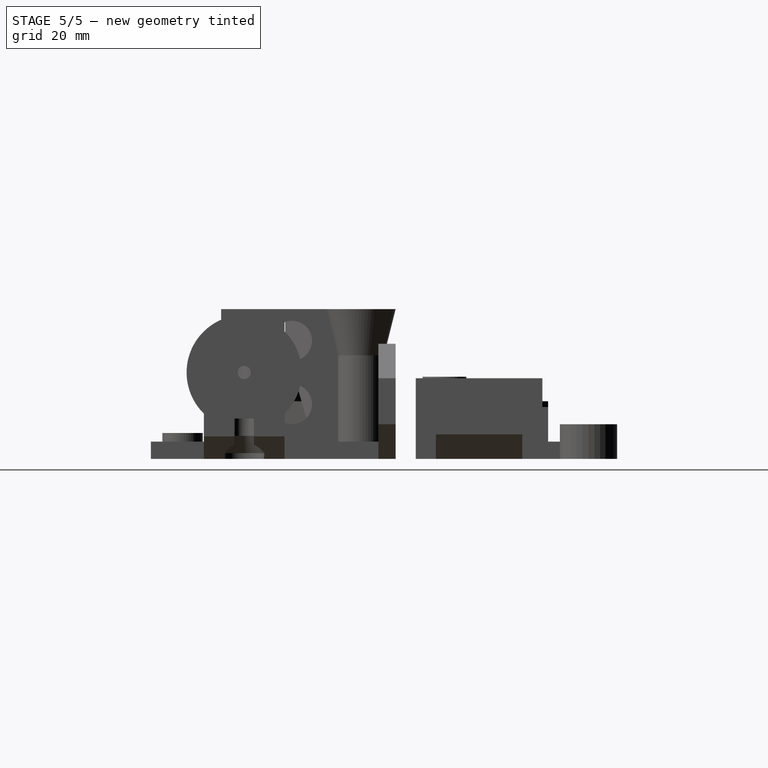
[diagram: stage 5 of 5 — right view after this stage's code; geometry added in this stage tinted green]
FEATURE [Part::Box] cube
  Height = 3
  Length = 42
  Placement = pos=(-21,-21,0) rot=(0,0,1;0rad)
  Width = 42
FEATURE [Part::Box] cube001
  Height = 26
  Length = 3
  Placement = pos=(-1.06066,-1.06066,0) rot=(0,0,1;0.785398rad)
  Width = 22
FEATURE [Part::Box] cube002
  Height = 26
  Length = 3
  Placement = pos=(-16.617,-14.4957,0) rot=(0,0,-1;0.785398rad)
  Width = 22
FEATURE [Part::Prism] prism
  Circumradius = 4
  Height = 8
  Placement = pos=(-3,0,18) rot=(0,0,1;0rad)
  Polygon = 50
FEATURE [Part::Prism] prism001
  Circumradius = 4
  Height = 8
  Placement = pos=(-10,0,17) rot=(0,1,0;1.5708rad)
  Polygon = 50
FEATURE [Part::Cut] difference
  Base = -> prism
  Tool = -> prism001
FEATURE [Part::Cone] cylinder
  Angle = 360
  Height = 22
  Placement = pos=(0,0,3) rot=(0,0,1;0rad)
  Radius1 = 13.5
  Radius2 = 6.3
FEATURE [Part::Box] cube003
  Height = 26.5
  Length = 15
  Placement = pos=(10.9602,-10.253,-0.25) rot=(0,0,1;0.785398rad)
  Width = 30
FEATURE [Part::Box] cube004
  Height = 26.5
  Length = 15
  Placement = pos=(-10.2531,-10.9602,-0.25) rot=(0,0,-1;0.785398rad)
  Width = 30
FEATURE [Part::Fuse] union
  Base = -> cube003
  Tool = -> cube004
FEATURE [Part::Cut] difference001
  Base = -> cylinder
  Tool = -> union
FEATURE [Part::Prism] prism002
  Circumradius = 4
  Height = 26
  Placement = pos=(-15.5,15.5,0) rot=(0,0,1;0rad)
  Polygon = 50
FEATURE [Part::Cone] cylinder001
  Angle = 360
  Height = 8
  Placement = pos=(-15.5,15.5,18) rot=(0,0,1;0rad)
  Radius1 = 4
  Radius2 = 6
FEATURE [Part::Prism] prism003
  Circumradius = 4
  Height = 23.5
  Placement = pos=(-15.5,-15.5,0) rot=(0,0,1;0rad)
  Polygon = 50
FEATURE [Part::Cone] cylinder002
  Angle = 360
  Height = 6
  Placement = pos=(-15.5,-15.5,17.5) rot=(0,0,1;0rad)
  Radius1 = 4
  Radius2 = 5
FEATURE [Part::Prism] prism004
  Circumradius = 3.5
  Height = 1.5
  Placement = pos=(15.5,-15.5,3) rot=(0,0,1;0rad)
  Polygon = 50
FEATURE [Part::Box] cube005
  Height = 20
  Length = 3
  Placement = pos=(-21.5,-37,0) rot=(0,0,1;0rad)
  Width = 74
FEATURE [Part::Box] cube006
  Height = 18
  Length = 6
  Placement = pos=(-23,-15,3) rot=(0,0,1;0rad)
  Width = 30
FEATURE [Part::Box] cube007
  Height = 7
  Length = 6
  Placement = pos=(-23,33.818,-8.13173) rot=(1,0,0;0.785398rad)
  Width = 16
FEATURE [Part::Box] cube008
  Height = 7
  Length = 6
  Placement = pos=(-23,-28.8683,-3.18198) rot=(1,0,0;2.35619rad)
  Width = 16
FEATURE [Part::Box] cube009
  Height = 7
  Length = 6
  Placement = pos=(-23,45.1317,16.818) rot=(1,0,0;2.35619rad)
  Width = 16
FEATURE [Part::Box] cube010
  Height = 7
  Length = 6
  Placement = pos=(-23,-40.182,11.8683) rot=(1,0,0;0.785398rad)
  Width = 16
FEATURE [Part::Prism] prism005
  Circumradius = 3.5
  Height = 6
  Placement = pos=(-23,30.5,10) rot=(0,1,0;1.5708rad)
  Polygon = 25
FEATURE [Part::Prism] prism006
  Circumradius = 3.5
  Height = 6
  Placement = pos=(-23,-30.5,10) rot=(0,1,0;1.5708rad)
  Polygon = 25
FEATURE [Part::MultiFuse] union001
  Shapes = -> [cube006,cube007,cube008,cube009,cube010,prism005,prism006]
FEATURE [Part::Cut] difference002
  Base = -> cube005
  Tool = -> union001
FEATURE [Part::MultiFuse] union002
  Shapes = -> [cube,cube001,cube002,difference,difference001,prism002,cylinder001,prism003,cylinder002,prism004,difference002]
FEATURE [Part::Cone] cylinder003
  Angle = 360
  Height = 20
  Placement = pos=(0,0,-0.2) rot=(0,0,1;0rad)
  Radius1 = 13
  Radius2 = 5
FEATURE [Part::MultiFuse] union003
  Shapes = -> [cylinder003,prism007,prism008,cylinder004,prism009,cylinder005,prism010,cube011,cube012,Group,prism011,cylinder010]
FEATURE [Part::Cut] difference003
  Base = -> union002
  Tool = -> union003
FEATURE [Part::MultiFuse] Group001
  Placement = pos=(0,-20,0) rot=(0,0,-1;1.5708rad)
  Shapes = -> [difference003,union006,difference008]
FEATURE [Part::MultiFuse] Group002
  Shapes = -> [Group001,difference010,difference011,prism040,difference015]
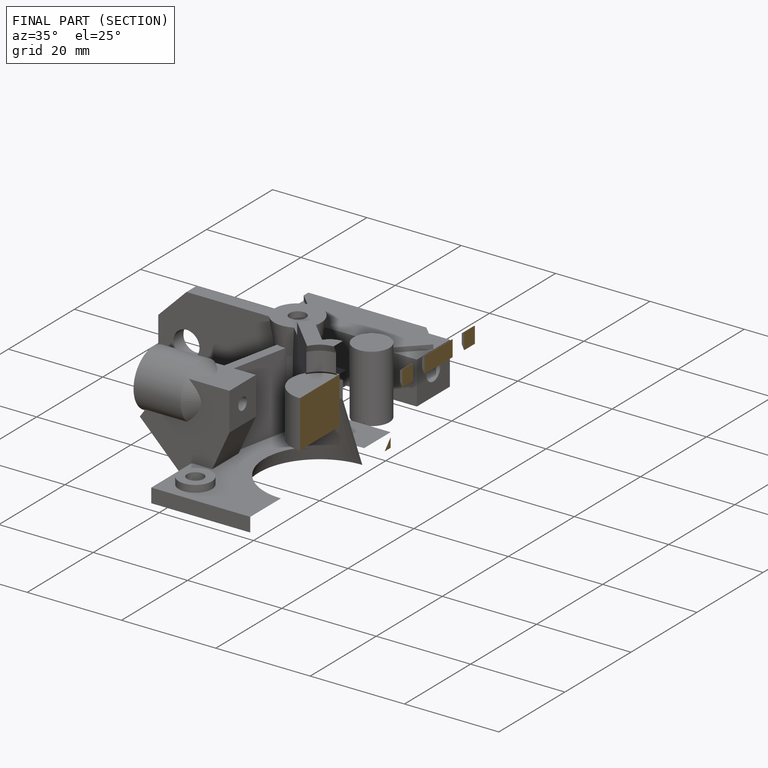
[diagram: finished part — half-section view (interior)]
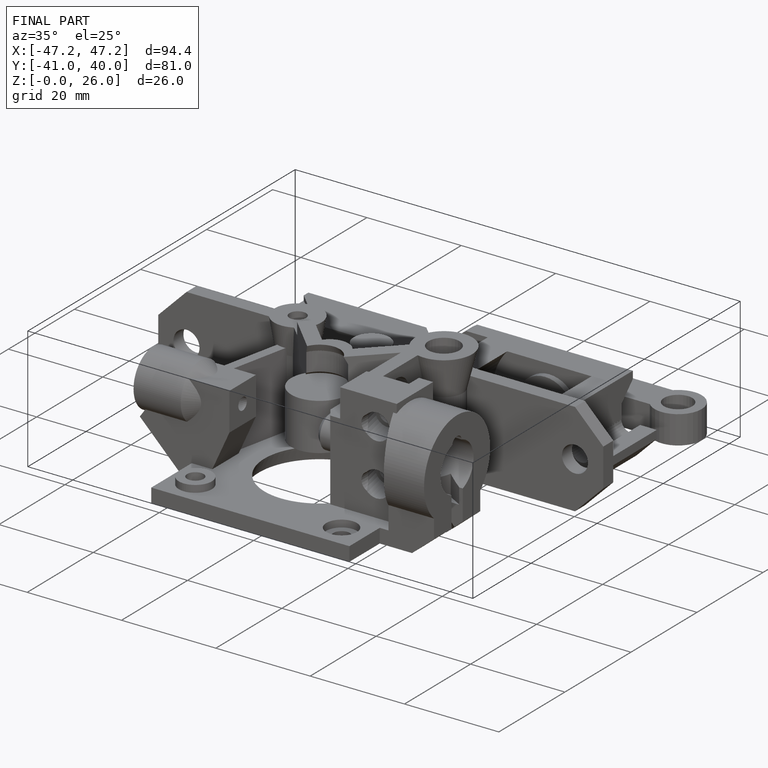
[diagram: finished part — iso view with bounding-box wireframe]
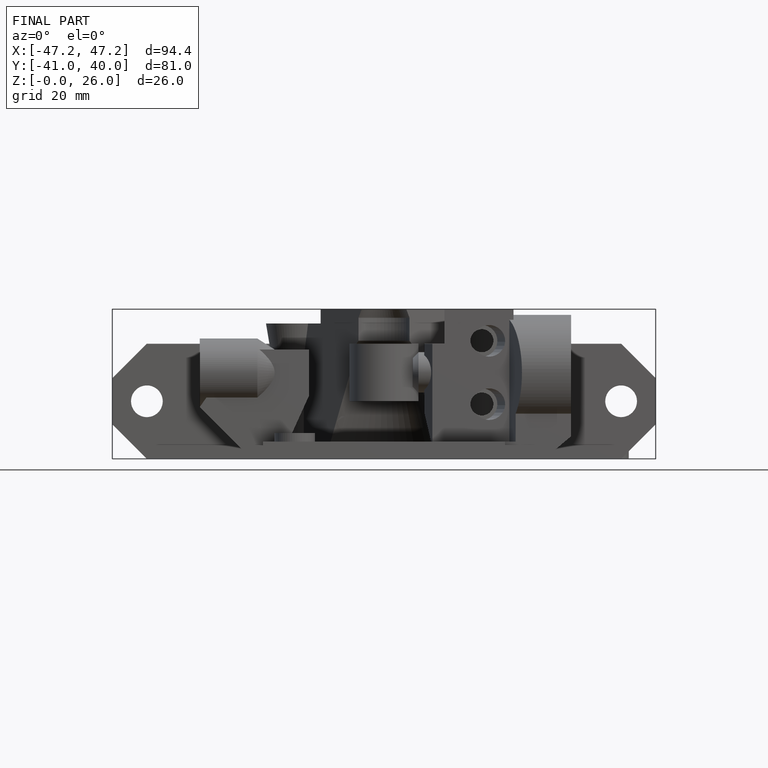
[diagram: finished part — front view with bounding-box wireframe]
